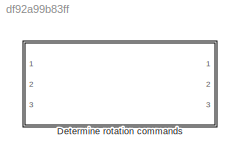
MODEL slx_df92a99b83ff
KIND library
CONFIG AbsTol = auto
CONFIG EnableMultiTasking = off
CONFIG FixedStep = auto
CONFIG MaxStep = auto
CONFIG MinStep = auto
CONFIG RelTol = 1e-3
CONFIG SampleTimeConstraint = Unconstrained
CONFIG Solver = VariableStepAuto
CONFIG SolverName = VariableStepAuto
CONFIG StartTime = 0.0
CONFIG StopTime = 10.0
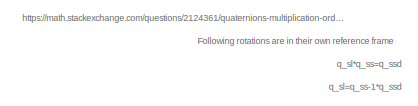
[diagram: Determine rotation commands - part 1/3, top left region]
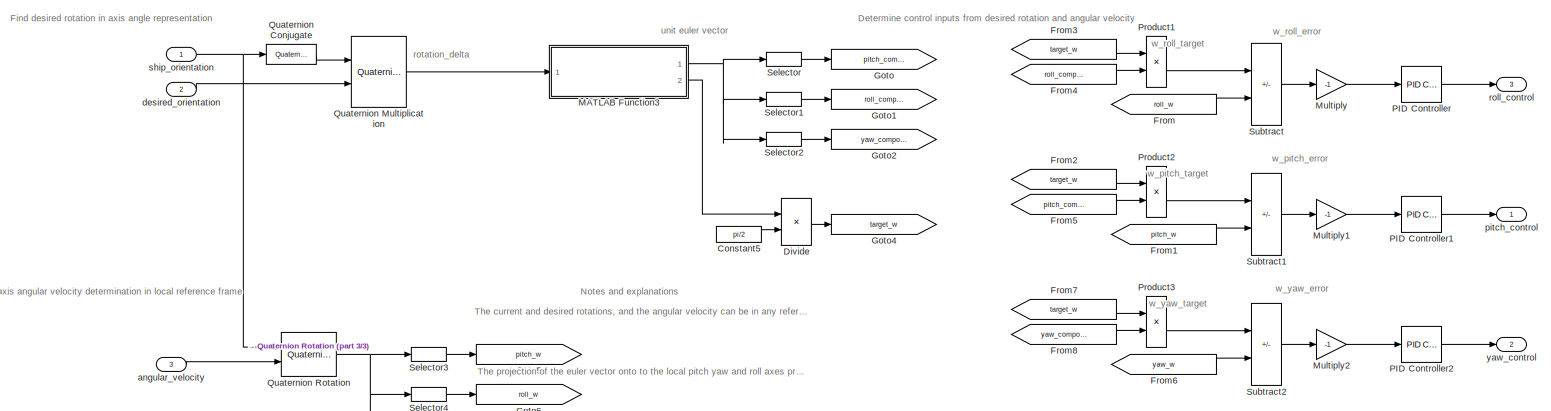
[diagram: Determine rotation commands - part 2/3, full width, middle band]
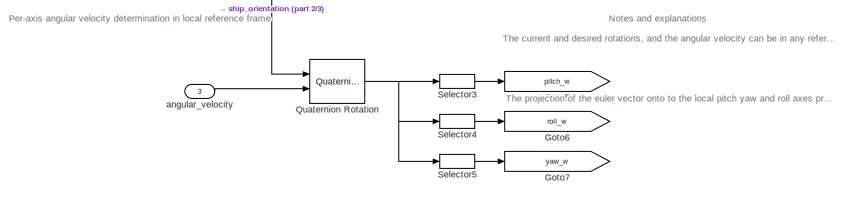
[diagram: Determine rotation commands - part 3/3, bottom left region]
BLOCK [SubSystem] Determine rotation commands
  Ports = [3, 3]
  RequestExecContextInheritance = off
BLOCK [Constant] Determine rotation commands/Constant5
  Value = pi/2
BLOCK [Product] Determine rotation commands/Divide
  Inputs = */
  Ports = [2, 1]
BLOCK [From] Determine rotation commands/From
  GotoTag = roll_w
BLOCK [From] Determine rotation commands/From1
  GotoTag = pitch_w
BLOCK [From] Determine rotation commands/From2
  GotoTag = target_w
BLOCK [From] Determine rotation commands/From3
  GotoTag = target_w
BLOCK [From] Determine rotation commands/From4
  GotoTag = roll_component
BLOCK [From] Determine rotation commands/From5
  GotoTag = pitch_component
BLOCK [From] Determine rotation commands/From6
  GotoTag = yaw_w
BLOCK [From] Determine rotation commands/From7
  GotoTag = target_w
BLOCK [From] Determine rotation commands/From8
  GotoTag = yaw_component
BLOCK [Goto] Determine rotation commands/Goto
  GotoTag = pitch_component
BLOCK [Goto] Determine rotation commands/Goto1
  GotoTag = roll_component
BLOCK [Goto] Determine rotation commands/Goto2
  GotoTag = yaw_component
BLOCK [Goto] Determine rotation commands/Goto4
  GotoTag = target_w
BLOCK [Goto] Determine rotation commands/Goto5
  GotoTag = pitch_w
BLOCK [Goto] Determine rotation commands/Goto6
  GotoTag = roll_w
BLOCK [Goto] Determine rotation commands/Goto7
  GotoTag = yaw_w
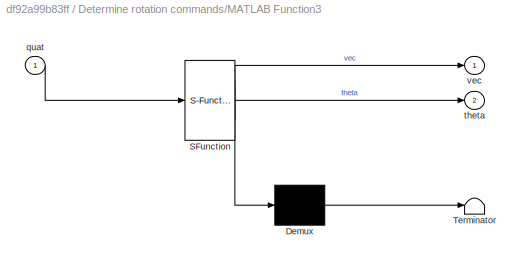
BLOCK [SubSystem] Determine rotation commands/MATLAB Function3
  ErrorFcn = Stateflow.Translate.translate
  PermitHierarchicalResolution = ExplicitOnly
  Ports = [1, 2]
  RequestExecContextInheritance = off
  SFBlockType = MATLAB Function
  TreatAsAtomicUnit = on
BLOCK [Demux] Determine rotation commands/MATLAB Function3/ Demux 
  Outputs = 1
  Ports = [1, 1]
BLOCK [S-Function] Determine rotation commands/MATLAB Function3/ SFunction 
  EnableBusSupport = on
  FunctionName = sf_sfun
  PortCounts = [1 3]
  Ports = [1, 3]
  SFcnIsStateOwnerBlock = off
  SFunctionDeploymentMode = off
  Tag = Stateflow S-Function 5
BLOCK [Terminator] Determine rotation commands/MATLAB Function3/ Terminator 
BLOCK [Inport] Determine rotation commands/MATLAB Function3/quat
BLOCK [Outport] Determine rotation commands/MATLAB Function3/theta
  Port = 2
BLOCK [Outport] Determine rotation commands/MATLAB Function3/vec
BLOCK [Gain] Determine rotation commands/Multiply
  Gain = -1
BLOCK [Gain] Determine rotation commands/Multiply1
  Gain = -1
BLOCK [Gain] Determine rotation commands/Multiply2
  Gain = -1
BLOCK [Reference] Determine rotation commands/PID Controller  REF=simulink/Continuous/PID Controller
  Ports = [1, 1]
  SourceBlock = simulink/Continuous/PID Controller
  SourceProductBaseCode = SL
  SourceType = PID 1dof
BLOCK [Reference] Determine rotation commands/PID Controller1  REF=simulink/Continuous/PID Controller
  Ports = [1, 1]
  SourceBlock = simulink/Continuous/PID Controller
  SourceProductBaseCode = SL
  SourceType = PID 1dof
BLOCK [Reference] Determine rotation commands/PID Controller2  REF=simulink/Continuous/PID Controller
  Ports = [1, 1]
  SourceBlock = simulink/Continuous/PID Controller
  SourceProductBaseCode = SL
  SourceType = PID 1dof
BLOCK [Product] Determine rotation commands/Product1
  Ports = [2, 1]
BLOCK [Product] Determine rotation commands/Product2
  Ports = [2, 1]
BLOCK [Product] Determine rotation commands/Product3
  Ports = [2, 1]
BLOCK [Reference] Determine rotation commands/Quaternion Conjugate  REF=aerolibutil/Quaternion
Conjugate
  Ports = [1, 1]
  SourceBlock = aerolibutil/Quaternion\nConjugate
  SourceProductBaseCode = AE
  SourceType = Quaternion Conjugate
BLOCK [Reference] Determine rotation commands/Quaternion Multiplication  REF=aerolibutil/Quaternion
Multiplication
  Ports = [2, 1]
  SourceBlock = aerolibutil/Quaternion\nMultiplication
  SourceProductBaseCode = AE
  SourceType = Quaternion Multiplication
BLOCK [Reference] Determine rotation commands/Quaternion Rotation  REF=aerolibutil/Quaternion
Rotation
  Ports = [2, 1]
  SourceBlock = aerolibutil/Quaternion\nRotation
  SourceProductBaseCode = AE
  SourceType = Quaternion Rotation
BLOCK [Selector] Determine rotation commands/Selector
  IndexOptions = Index vector (dialog)
  Indices = 1
  InputPortWidth = 3
  OutputSizes = 1
  Ports = [1, 1]
BLOCK [Selector] Determine rotation commands/Selector1
  IndexOptions = Index vector (dialog)
  Indices = 2
  InputPortWidth = 3
  OutputSizes = 1
  Ports = [1, 1]
BLOCK [Selector] Determine rotation commands/Selector2
  IndexOptions = Index vector (dialog)
  Indices = 3
  InputPortWidth = 3
  OutputSizes = 1
  Ports = [1, 1]
BLOCK [Selector] Determine rotation commands/Selector3
  IndexOptions = Index vector (dialog)
  Indices = 1
  InputPortWidth = 3
  OutputSizes = 1
  Ports = [1, 1]
BLOCK [Selector] Determine rotation commands/Selector4
  IndexOptions = Index vector (dialog)
  Indices = 2
  InputPortWidth = 3
  OutputSizes = 1
  Ports = [1, 1]
BLOCK [Selector] Determine rotation commands/Selector5
  IndexOptions = Index vector (dialog)
  Indices = 3
  InputPortWidth = 3
  OutputSizes = 1
  Ports = [1, 1]
BLOCK [Sum] Determine rotation commands/Subtract
  IconShape = rectangular
  Inputs = +-
  Ports = [2, 1]
BLOCK [Sum] Determine rotation commands/Subtract1
  IconShape = rectangular
  Inputs = +-
  Ports = [2, 1]
BLOCK [Sum] Determine rotation commands/Subtract2
  IconShape = rectangular
  Inputs = +-
  Ports = [2, 1]
BLOCK [Inport] Determine rotation commands/angular_velocity
  Port = 3
BLOCK [Inport] Determine rotation commands/desired_orientation
  Port = 2
BLOCK [Outport] Determine rotation commands/pitch_control
BLOCK [Outport] Determine rotation commands/roll_control
  Port = 3
BLOCK [Inport] Determine rotation commands/ship_orientation
BLOCK [Outport] Determine rotation commands/yaw_control
  Port = 2
ANNOTATION Determine rotation commands: Determine control inputs from desired rotation and angular velocity
ANNOTATION Determine rotation commands: Find desired rotation in axis angle representation
ANNOTATION Determine rotation commands: Following rotations are in their own reference frame
ANNOTATION Determine rotation commands: Notes and explanations
ANNOTATION Determine rotation commands: Per-axis angular velocity determination in local reference frame
ANNOTATION Determine rotation commands: The current and desired rotations, and the angular velocity can be in any reference frame, but they must be in the same reference frame
ANNOTATION Determine rotation commands: The projection of the euler vector onto to the local pitch yaw and roll axes provides the relative pitch yaw and roll commands for a simultanious motion
ANNOTATION Determine rotation commands: https://math.stackexchange.com/questions/2124361/quaternions-multiplication-order-to-rotate-unrotate
ANNOTATION Determine rotation commands: q_sl*q_ss=q_ssd
ANNOTATION Determine rotation commands: q_sl=q_ss-1*q_ssd
ANNOTATION Determine rotation commands: rotation_delta
ANNOTATION Determine rotation commands: unit euler vector
ANNOTATION Determine rotation commands: w_pitch_error
ANNOTATION Determine rotation commands: w_pitch_target
ANNOTATION Determine rotation commands: w_roll_error
ANNOTATION Determine rotation commands: w_roll_target
ANNOTATION Determine rotation commands: w_yaw_error
ANNOTATION Determine rotation commands: w_yaw_target
LINE Determine rotation commands/Constant5:1 -> Determine rotation commands/Divide:2
LINE Determine rotation commands/Divide:1 -> Determine rotation commands/Goto4:1
LINE Determine rotation commands/From1:1 -> Determine rotation commands/Subtract1:2
LINE Determine rotation commands/From2:1 -> Determine rotation commands/Product2:1
LINE Determine rotation commands/From3:1 -> Determine rotation commands/Product1:1
LINE Determine rotation commands/From4:1 -> Determine rotation commands/Product1:2
LINE Determine rotation commands/From5:1 -> Determine rotation commands/Product2:2
LINE Determine rotation commands/From6:1 -> Determine rotation commands/Subtract2:2
LINE Determine rotation commands/From7:1 -> Determine rotation commands/Product3:1
LINE Determine rotation commands/From8:1 -> Determine rotation commands/Product3:2
LINE Determine rotation commands/From:1 -> Determine rotation commands/Subtract:2
NET Determine rotation commands/MATLAB Function3:1 -> Determine rotation commands/Selector1:1, Determine rotation commands/Selector2:1, Determine rotation commands/Selector:1
LINE Determine rotation commands/MATLAB Function3:2 -> Determine rotation commands/Divide:1
LINE Determine rotation commands/Multiply1:1 -> Determine rotation commands/PID Controller1:1
LINE Determine rotation commands/Multiply2:1 -> Determine rotation commands/PID Controller2:1
LINE Determine rotation commands/Multiply:1 -> Determine rotation commands/PID Controller:1
LINE Determine rotation commands/PID Controller1:1 -> Determine rotation commands/pitch_control:1
LINE Determine rotation commands/PID Controller2:1 -> Determine rotation commands/yaw_control:1
LINE Determine rotation commands/PID Controller:1 -> Determine rotation commands/roll_control:1
LINE Determine rotation commands/Product1:1 -> Determine rotation commands/Subtract:1
LINE Determine rotation commands/Product2:1 -> Determine rotation commands/Subtract1:1
LINE Determine rotation commands/Product3:1 -> Determine rotation commands/Subtract2:1
LINE Determine rotation commands/Quaternion Conjugate:1 -> Determine rotation commands/Quaternion Multiplication:1
LINE Determine rotation commands/Quaternion Multiplication:1 -> Determine rotation commands/MATLAB Function3:1
NET Determine rotation commands/Quaternion Rotation:1 -> Determine rotation commands/Selector3:1, Determine rotation commands/Selector4:1, Determine rotation commands/Selector5:1
LINE Determine rotation commands/Selector1:1 -> Determine rotation commands/Goto1:1
LINE Determine rotation commands/Selector2:1 -> Determine rotation commands/Goto2:1
LINE Determine rotation commands/Selector3:1 -> Determine rotation commands/Goto5:1
LINE Determine rotation commands/Selector4:1 -> Determine rotation commands/Goto6:1
LINE Determine rotation commands/Selector5:1 -> Determine rotation commands/Goto7:1
LINE Determine rotation commands/Selector:1 -> Determine rotation commands/Goto:1
LINE Determine rotation commands/Subtract1:1 -> Determine rotation commands/Multiply1:1
LINE Determine rotation commands/Subtract2:1 -> Determine rotation commands/Multiply2:1
LINE Determine rotation commands/Subtract:1 -> Determine rotation commands/Multiply:1
LINE Determine rotation commands/angular_velocity:1 -> Determine rotation commands/Quaternion Rotation:2
LINE Determine rotation commands/desired_orientation:1 -> Determine rotation commands/Quaternion Multiplication:2
NET Determine rotation commands/ship_orientation:1 -> Determine rotation commands/Quaternion Conjugate:1, Determine rotation commands/Quaternion Rotation:1
note: NET lines group one-source signal fan-out (src -> all destinations, sorted); 1:1 wires keep LINE
CHART Determine rotation commands/MATLAB Function3 states=1 transitions=1
  STATE_LABEL 'eML_blk_kernel()'
  STATE_LABEL 'SCRIPT:\nfunction [vec, theta]= quat2eulervector(quat)\n\nquat_clmp = max(min(quat(1),1),-1);\ntheta = 2*acos(quat_clmp);\nvec = quat(2:4);\nif theta ~= 0\n    vec = vec./(sin(theta/2));\nelse\n    vec = [0;0;0];\nend\n'
CHART  states=0 transitions=0
